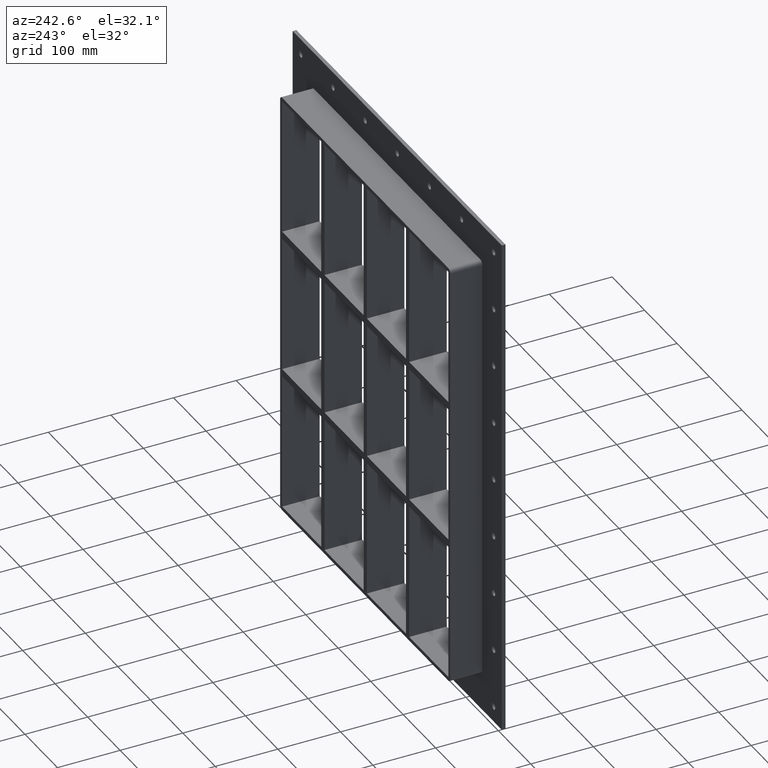
[diagram: clean part render]
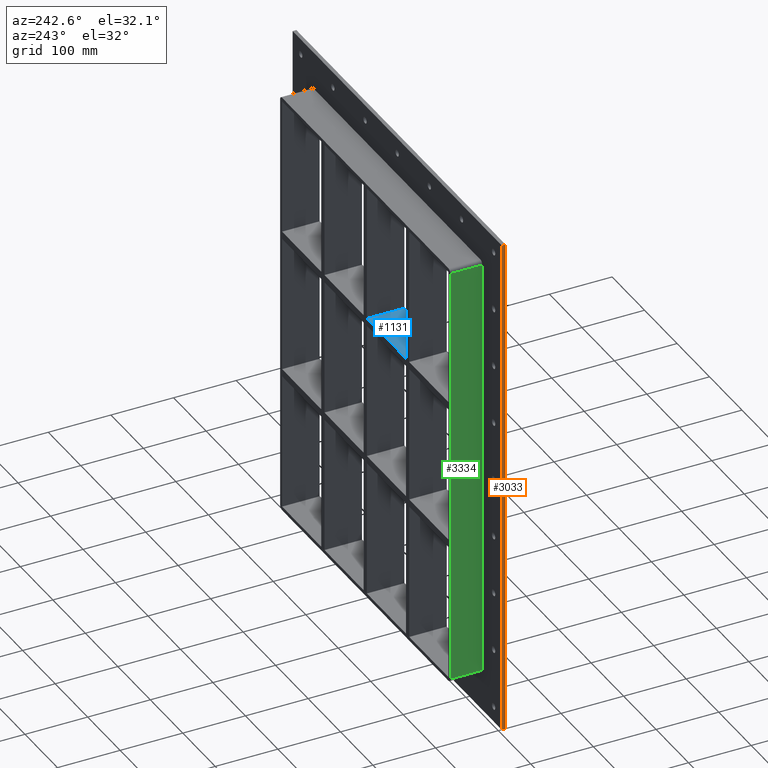
[diagram: same view with three faces highlighted in distinct colors, each labeled with its STEP entity id]
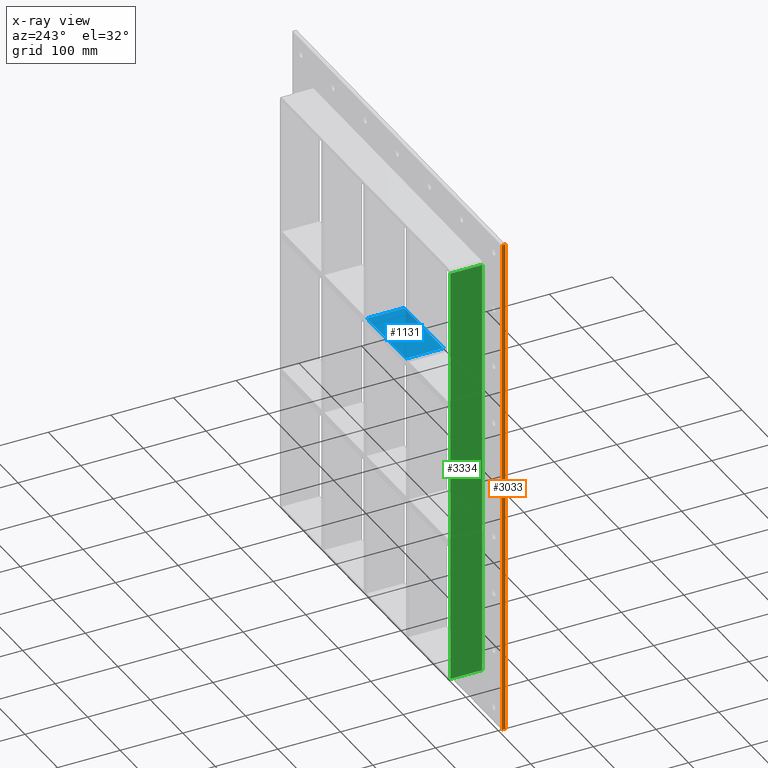
[diagram: x-ray of the same camera — body ghosted, the three highlighted faces saturated]
A machine part, auxiliary view with three faces highlighted in distinct colors.
The next image is the same camera in x-ray (body ghosted, the three faces saturated) — at least one of them is partly hidden behind the body in this view.
Their STEP definitions:

[orange] entity #3033 — the highlighted planar face has unit normal (-1, 0, 0).
#2629=CARTESIAN_POINT('',(-322.0,6.000000000000001,405.00000000000006));
#2630=VERTEX_POINT('',#2629);
#2647=CARTESIAN_POINT('',(-322.0,6.000000000000001,-405.00000000000006));
#2648=VERTEX_POINT('',#2647);
#2655=CARTESIAN_POINT('',(-322.0,6.000000000000001,-405.00000000000006));
#2656=DIRECTION('',(0.0,0.0,1.0));
#2657=VECTOR('',#2656,810.00000000000011);
#2658=LINE('',#2655,#2657);
#2659=EDGE_CURVE('',#2648,#2630,#2658,.T.);
#2823=CARTESIAN_POINT('',(-322.0,0.0,405.00000000000006));
#2824=VERTEX_POINT('',#2823);
#2833=CARTESIAN_POINT('',(-322.0,0.0,-405.00000000000006));
#2834=VERTEX_POINT('',#2833);
#2835=CARTESIAN_POINT('',(-322.0,0.0,-405.00000000000006));
#2836=DIRECTION('',(0.0,0.0,1.0));
#2837=VECTOR('',#2836,810.00000000000011);
#2838=LINE('',#2835,#2837);
#2839=EDGE_CURVE('',#2834,#2824,#2838,.T.);
#3012=CARTESIAN_POINT('',(-322.0,0.0,-405.00000000000006));
#3013=DIRECTION('',(-1.0,0.0,0.0));
#3014=DIRECTION('',(0.0,0.0,1.0));
#3015=AXIS2_PLACEMENT_3D('',#3012,#3013,#3014);
#3016=PLANE('',#3015);
#3017=ORIENTED_EDGE('',*,*,#2839,.T.);
#3018=CARTESIAN_POINT('',(-322.0,0.0,405.00000000000006));
#3019=DIRECTION('',(0.0,1.0,0.0));
#3020=VECTOR('',#3019,6.000000000000001);
#3021=LINE('',#3018,#3020);
#3022=EDGE_CURVE('',#2824,#2630,#3021,.T.);
#3023=ORIENTED_EDGE('',*,*,#3022,.T.);
#3024=ORIENTED_EDGE('',*,*,#2659,.F.);
#3025=CARTESIAN_POINT('',(-322.0,0.0,-405.00000000000006));
#3026=DIRECTION('',(0.0,1.0,0.0));
#3027=VECTOR('',#3026,6.000000000000001);
#3028=LINE('',#3025,#3027);
#3029=EDGE_CURVE('',#2834,#2648,#3028,.T.);
#3030=ORIENTED_EDGE('',*,*,#3029,.F.);
#3031=EDGE_LOOP('',(#3017,#3023,#3024,#3030));
#3032=FACE_OUTER_BOUND('',#3031,.T.);
#3033=ADVANCED_FACE('',(#3032),#3016,.T.);

[blue] entity #1131 — the highlighted planar face has unit normal (0, 0, 1).
#1092=CARTESIAN_POINT('',(-255.99999999999972,-3.0,120.99999999999994));
#1093=DIRECTION('',(0.0,0.0,1.0));
#1094=DIRECTION('',(1.0,0.0,0.0));
#1095=AXIS2_PLACEMENT_3D('',#1092,#1093,#1094);
#1096=PLANE('',#1095);
#1097=CARTESIAN_POINT('',(-5.000000000001386,57.0,120.99999999999994));
#1098=VERTEX_POINT('',#1097);
#1099=CARTESIAN_POINT('',(-5.000000000001386,-3.0,120.99999999999994));
#1100=VERTEX_POINT('',#1099);
#1101=CARTESIAN_POINT('',(-5.000000000001386,57.0,120.99999999999994));
#1102=DIRECTION('',(0.0,-1.0,0.0));
#1103=VECTOR('',#1102,60.0);
#1104=LINE('',#1101,#1103);
#1105=EDGE_CURVE('',#1098,#1100,#1104,.T.);
#1106=ORIENTED_EDGE('',*,*,#1105,.F.);
#1107=CARTESIAN_POINT('',(-125.49999999999272,57.0,120.99999999999994));
#1108=VERTEX_POINT('',#1107);
#1109=CARTESIAN_POINT('',(-125.49999999999272,57.0,120.99999999999994));
#1110=DIRECTION('',(1.0,0.0,0.0));
#1111=VECTOR('',#1110,120.49999999999136);
#1112=LINE('',#1109,#1111);
#1113=EDGE_CURVE('',#1108,#1098,#1112,.T.);
#1114=ORIENTED_EDGE('',*,*,#1113,.F.);
#1115=CARTESIAN_POINT('',(-125.49999999999272,-3.0,120.99999999999994));
#1116=VERTEX_POINT('',#1115);
#1117=CARTESIAN_POINT('',(-125.49999999999272,-3.0,120.99999999999994));
#1118=DIRECTION('',(0.0,1.0,0.0));
#1119=VECTOR('',#1118,60.0);
#1120=LINE('',#1117,#1119);
#1121=EDGE_CURVE('',#1116,#1108,#1120,.T.);
#1122=ORIENTED_EDGE('',*,*,#1121,.F.);
#1123=CARTESIAN_POINT('',(-125.49999999999272,-3.0,120.99999999999994));
#1124=DIRECTION('',(1.0,0.0,0.0));
#1125=VECTOR('',#1124,120.49999999999136);
#1126=LINE('',#1123,#1125);
#1127=EDGE_CURVE('',#1116,#1100,#1126,.T.);
#1128=ORIENTED_EDGE('',*,*,#1127,.T.);
#1129=EDGE_LOOP('',(#1106,#1114,#1122,#1128));
#1130=FACE_OUTER_BOUND('',#1129,.T.);
#1131=ADVANCED_FACE('',(#1130),#1096,.T.);

[green] entity #3334 — the highlighted planar face has unit normal (-1, 0, 0).
#1506=CARTESIAN_POINT('',(-262.0,57.0,-339.00000000000023));
#1507=VERTEX_POINT('',#1506);
#1515=CARTESIAN_POINT('',(-262.0,57.0,338.99999999999989));
#1516=VERTEX_POINT('',#1515);
#1517=CARTESIAN_POINT('',(-262.0,57.0,-339.00000000000017));
#1518=DIRECTION('',(0.0,0.0,1.0));
#1519=VECTOR('',#1518,678.0);
#1520=LINE('',#1517,#1519);
#1521=EDGE_CURVE('',#1507,#1516,#1520,.T.);
#2749=CARTESIAN_POINT('',(-262.0,6.000000000000001,-339.00000000000023));
#2750=VERTEX_POINT('',#2749);
#2800=CARTESIAN_POINT('',(-262.0,6.000000000000001,338.99999999999989));
#2801=VERTEX_POINT('',#2800);
#2809=CARTESIAN_POINT('',(-262.0,6.000000000000001,-339.00000000000017));
#2810=DIRECTION('',(0.0,0.0,1.0));
#2811=VECTOR('',#2810,678.00000000000011);
#2812=LINE('',#2809,#2811);
#2813=EDGE_CURVE('',#2750,#2801,#2812,.T.);
#3307=CARTESIAN_POINT('',(-262.0,6.000000000000001,-339.00000000000023));
#3308=DIRECTION('',(0.0,1.0,0.0));
#3309=VECTOR('',#3308,51.0);
#3310=LINE('',#3307,#3309);
#3311=EDGE_CURVE('',#2750,#1507,#3310,.T.);
#3318=CARTESIAN_POINT('',(-262.0,0.0,-345.00000000000011));
#3319=DIRECTION('',(-1.0,0.0,0.0));
#3320=DIRECTION('',(0.0,0.0,1.0));
#3321=AXIS2_PLACEMENT_3D('',#3318,#3319,#3320);
#3322=PLANE('',#3321);
#3323=ORIENTED_EDGE('',*,*,#2813,.T.);
#3324=CARTESIAN_POINT('',(-262.0,57.0,338.99999999999989));
#3325=DIRECTION('',(0.0,-1.0,0.0));
#3326=VECTOR('',#3325,51.0);
#3327=LINE('',#3324,#3326);
#3328=EDGE_CURVE('',#1516,#2801,#3327,.T.);
#3329=ORIENTED_EDGE('',*,*,#3328,.F.);
#3330=ORIENTED_EDGE('',*,*,#1521,.F.);
#3331=ORIENTED_EDGE('',*,*,#3311,.F.);
#3332=EDGE_LOOP('',(#3323,#3329,#3330,#3331));
#3333=FACE_OUTER_BOUND('',#3332,.T.);
#3334=ADVANCED_FACE('',(#3333),#3322,.T.);